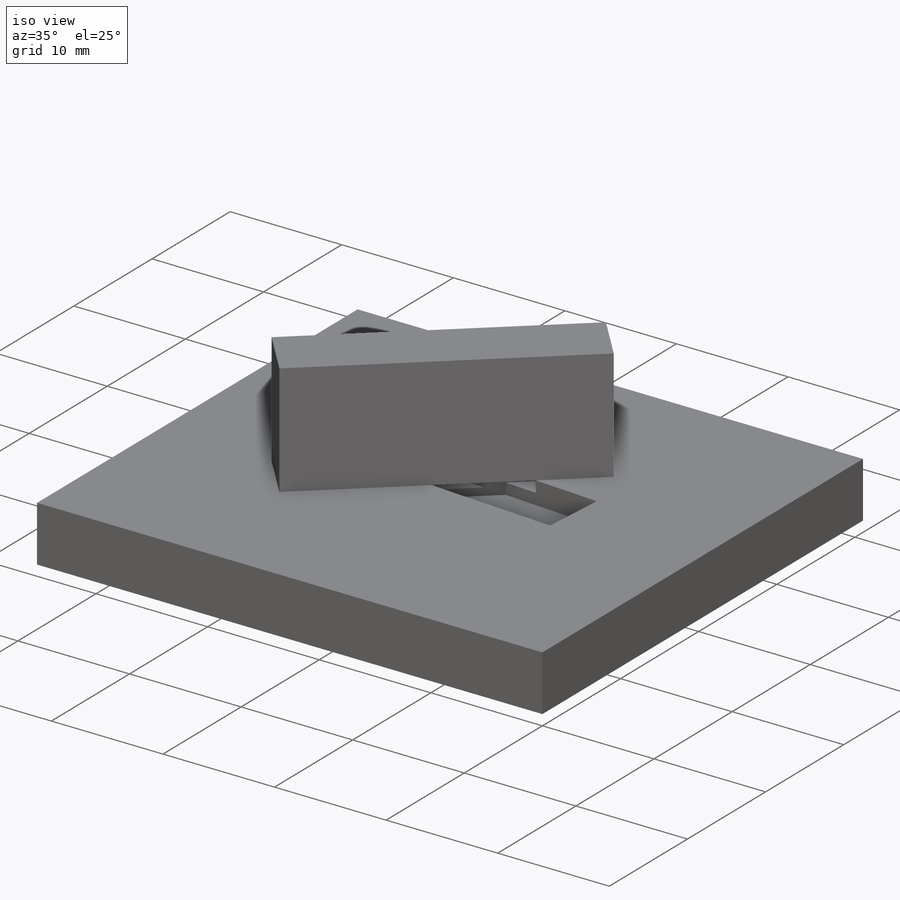
[diagram: iso view]
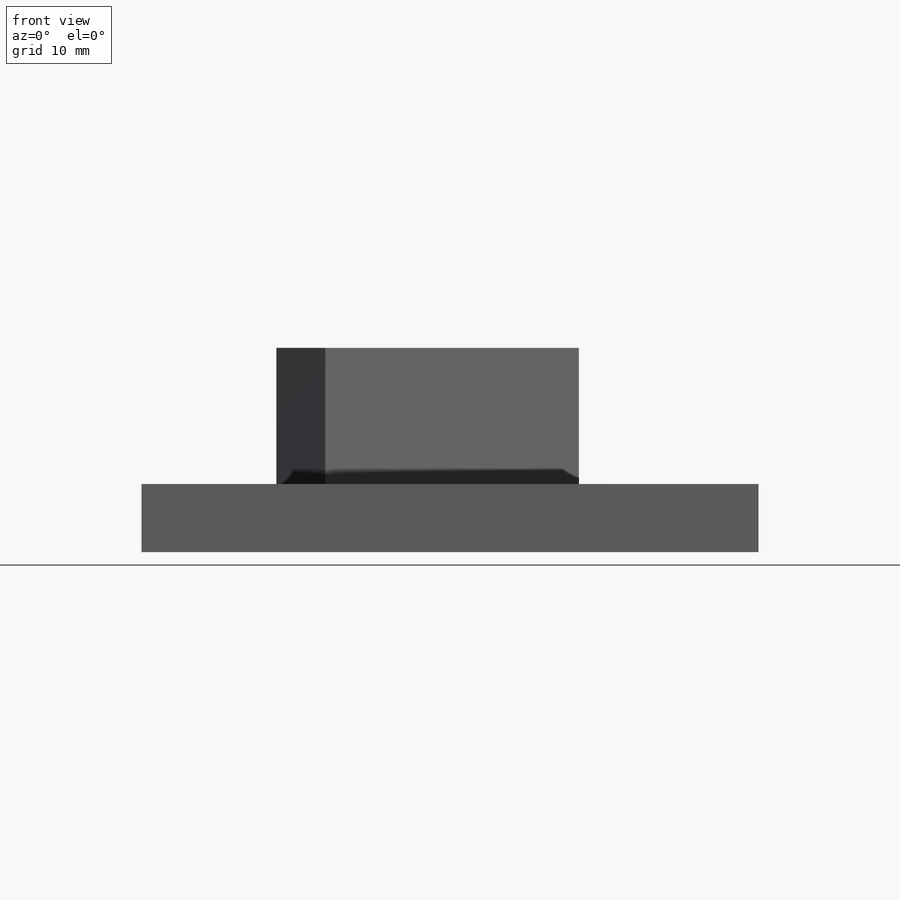
[diagram: front view]
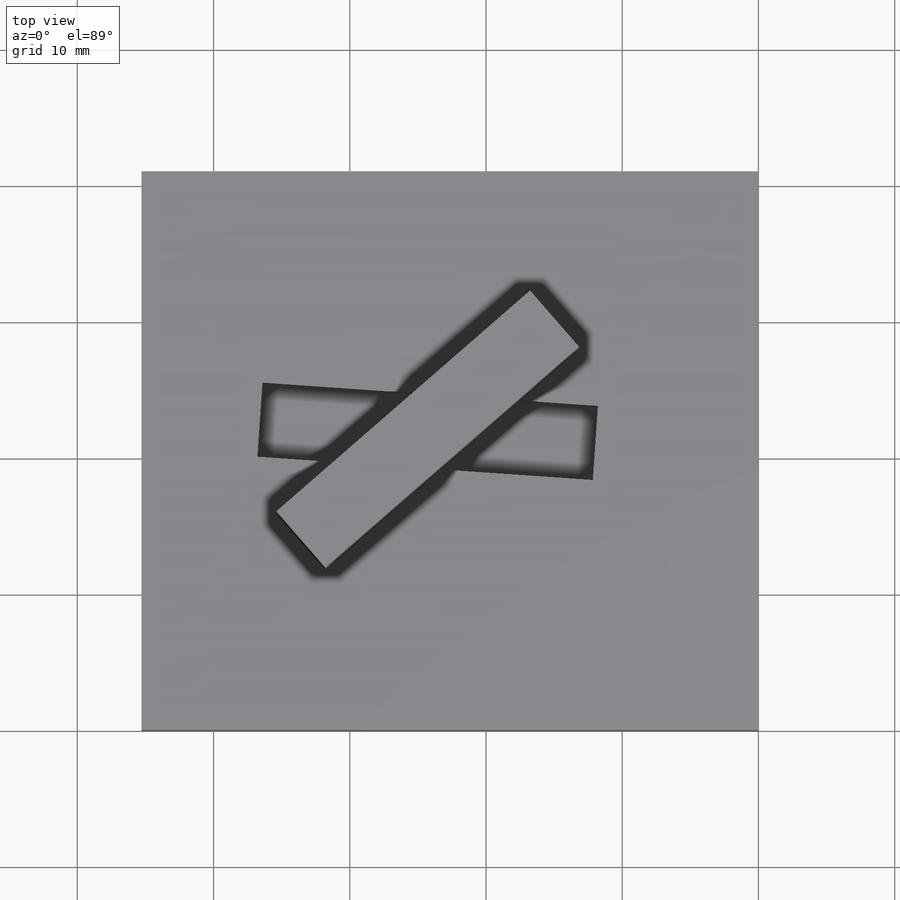
[diagram: top view]
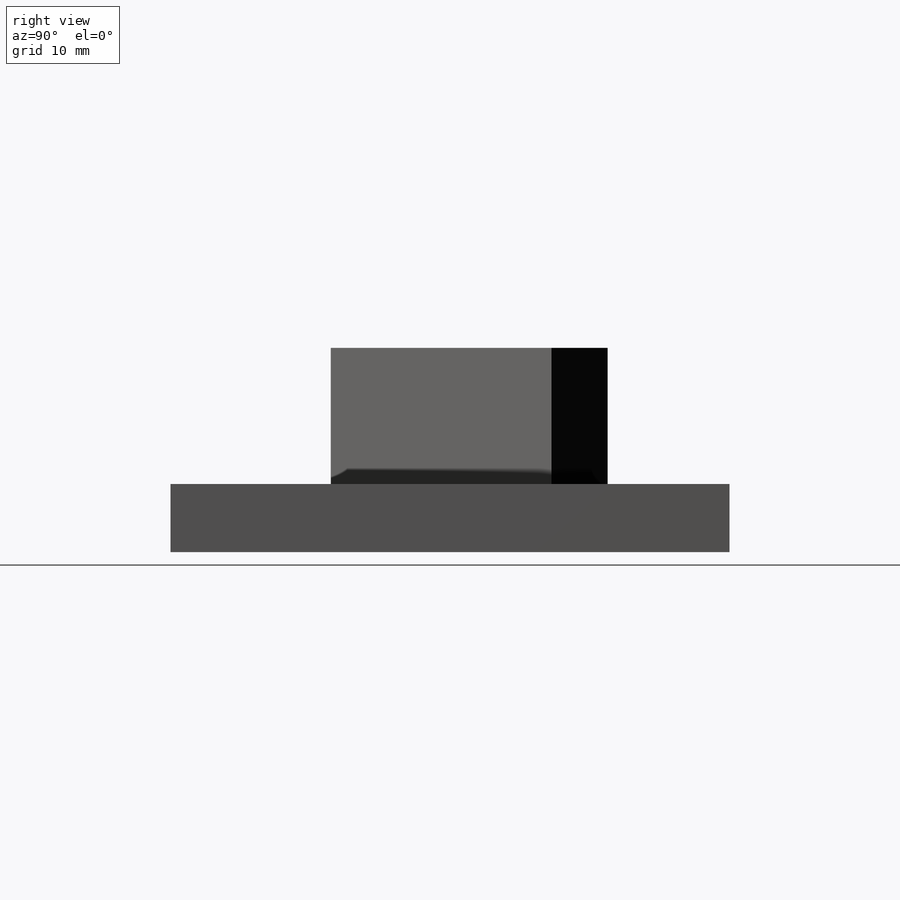
[diagram: right view]
SOLIDWORKS PART (.sldprt)
format: sldprt  version: not decoded by parser v0  size: 233,984 bytes
history: native  units: mm
features: plane x5, sketch x5, cut_extrude x3, extrude x2, move_body x2, material x1 (+9 scaffold rows collapsed)
feature tree (27):
  scaffold x9  (default folders/planes/origin — collapsed)
  material  "Material <nicht festgelegt>"
  plane  "Ebene vorne"
  plane  "Ebene oben"
  plane  "Ebene rechts"
  sketch  "Skizze1"
  extrude  "Aufsatz-Linear austragen1"  Depth=5mm
  sketch  "Skizze2"
  extrude  "Aufsatz-Linear austragen2"  Depth=10mm
  plane  "Ebene1"
  plane  "Ebene2"
  sketch  "Skizze3"  dims[D1=0.0mm]
  cut_extrude  "Schnitt-Linear austragen1"  Depth=1mm
  move_body  "Körper-Verschieben/Kopieren1"
  sketch  "Skizze4"  dims[D1=0.0mm]
  cut_extrude  "Schnitt-Linear austragen2"  Depth=2mm
  move_body  "Körper-Verschieben/Kopieren2"
  sketch  "Skizze5"  dims[D1=2.0mm]
  cut_extrude  "Schnitt-Linear austragen3"  Depth=7mm
decode coverage: 8 of 12 modeling features carry decoded parameters
note: suppression state not decoded; provenance and decode notes live in map.json
